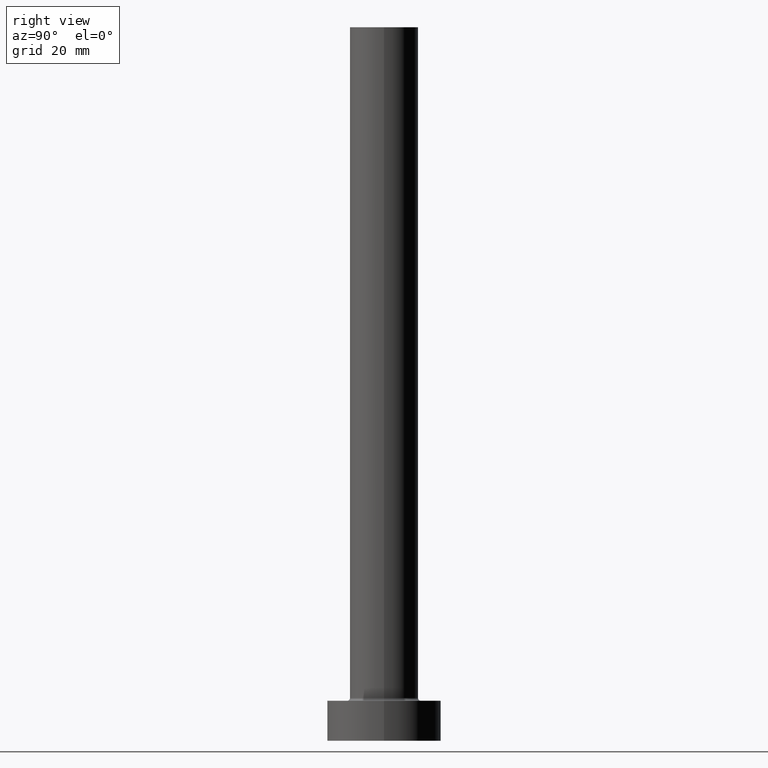
[diagram: clean part render]
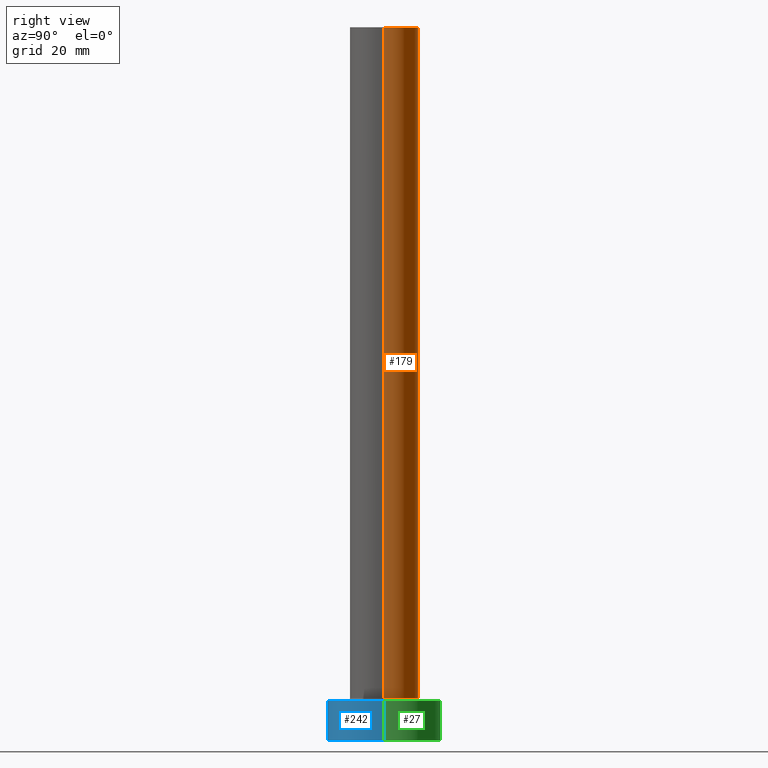
[diagram: same view with three faces highlighted in distinct colors, each labeled with its STEP entity id]
A machine part, right view with three faces highlighted in distinct colors.
Their STEP definitions:

[orange] entity #179 — the highlighted cylindrical surface (edge-blend (fillet) strip) has radius 6 mm, axis along (-0, -0, -1).
#12 = VECTOR ( 'NONE', #396, 1000.000000000000000 ) ;
#22 = ORIENTED_EDGE ( 'NONE', *, *, #330, .T. ) ;
#35 = VECTOR ( 'NONE', #274, 1000.000000000000000 ) ;
#54 = VERTEX_POINT ( 'NONE', #249 ) ;
#70 = EDGE_CURVE ( 'NONE', #160, #345, #219, .T. ) ;
#71 = DIRECTION ( 'NONE',  ( 1.000000000000000000, 0.000000000000000000, 0.000000000000000000 ) ) ;
#75 = EDGE_CURVE ( 'NONE', #152, #160, #253, .T. ) ;
#89 = CYLINDRICAL_SURFACE ( 'NONE', #418, 6.000000000000000888 ) ;
#93 = EDGE_CURVE ( 'NONE', #54, #345, #409, .T. ) ;
#129 = CARTESIAN_POINT ( 'NONE',  ( 6.000000000000000888, 7.347880794884120722E-16, 125.0000000000000000 ) ) ;
#130 = CARTESIAN_POINT ( 'NONE',  ( -6.000000000000000888, 0.000000000000000000, 125.0000000000000000 ) ) ;
#152 = VERTEX_POINT ( 'NONE', #395 ) ;
#156 = CARTESIAN_POINT ( 'NONE',  ( 0.000000000000000000, 0.000000000000000000, 7.500000000000007105 ) ) ;
#160 = VERTEX_POINT ( 'NONE', #130 ) ;
#165 = AXIS2_PLACEMENT_3D ( 'NONE', #362, #324, #71 ) ;
#166 = ORIENTED_EDGE ( 'NONE', *, *, #70, .F. ) ;
#168 = CARTESIAN_POINT ( 'NONE',  ( 0.000000000000000000, 0.000000000000000000, 125.0000000000000000 ) ) ;
#172 = FACE_OUTER_BOUND ( 'NONE', #201, .T. ) ;
#179 = ADVANCED_FACE ( 'NONE', ( #172 ), #89, .T. ) ;
#201 = EDGE_LOOP ( 'NONE', ( #298, #22, #353, #166 ) ) ;
#211 = DIRECTION ( 'NONE',  ( 1.000000000000000000, 0.000000000000000000, 0.000000000000000000 ) ) ;
#219 = LINE ( 'NONE', #250, #12 ) ;
#249 = CARTESIAN_POINT ( 'NONE',  ( 6.000000000000000888, 7.347880794884120722E-16, 7.500000000000007105 ) ) ;
#250 = CARTESIAN_POINT ( 'NONE',  ( -6.000000000000000888, 0.000000000000000000, 125.0000000000000000 ) ) ;
#253 = CIRCLE ( 'NONE', #165, 6.000000000000000888 ) ;
#274 = DIRECTION ( 'NONE',  ( -0.000000000000000000, -0.000000000000000000, -1.000000000000000000 ) ) ;
#298 = ORIENTED_EDGE ( 'NONE', *, *, #75, .F. ) ;
#324 = DIRECTION ( 'NONE',  ( 0.000000000000000000, 0.000000000000000000, 1.000000000000000000 ) ) ;
#330 = EDGE_CURVE ( 'NONE', #152, #54, #379, .T. ) ;
#340 = DIRECTION ( 'NONE',  ( -1.000000000000000000, 0.000000000000000000, 0.000000000000000000 ) ) ;
#345 = VERTEX_POINT ( 'NONE', #454 ) ;
#353 = ORIENTED_EDGE ( 'NONE', *, *, #93, .T. ) ;
#362 = CARTESIAN_POINT ( 'NONE',  ( 0.000000000000000000, 0.000000000000000000, 125.0000000000000000 ) ) ;
#379 = LINE ( 'NONE', #129, #35 ) ;
#382 = AXIS2_PLACEMENT_3D ( 'NONE', #156, #444, #211 ) ;
#395 = CARTESIAN_POINT ( 'NONE',  ( 6.000000000000000888, 7.347880794884120722E-16, 125.0000000000000000 ) ) ;
#396 = DIRECTION ( 'NONE',  ( -0.000000000000000000, -0.000000000000000000, -1.000000000000000000 ) ) ;
#409 = CIRCLE ( 'NONE', #382, 6.000000000000000888 ) ;
#418 = AXIS2_PLACEMENT_3D ( 'NONE', #168, #422, #340 ) ;
#422 = DIRECTION ( 'NONE',  ( -0.000000000000000000, -0.000000000000000000, -1.000000000000000000 ) ) ;
#444 = DIRECTION ( 'NONE',  ( 0.000000000000000000, 0.000000000000000000, 1.000000000000000000 ) ) ;
#454 = CARTESIAN_POINT ( 'NONE',  ( -6.000000000000000888, 0.000000000000000000, 7.500000000000007105 ) ) ;

[blue] entity #242 — the highlighted cylindrical surface (partial cylindrical patch) has radius 10 mm, axis along (-0, -0, -1).
#20 = EDGE_CURVE ( 'NONE', #106, #128, #195, .T. ) ;
#25 = ORIENTED_EDGE ( 'NONE', *, *, #202, .T. ) ;
#59 = DIRECTION ( 'NONE',  ( -0.000000000000000000, -0.000000000000000000, -1.000000000000000000 ) ) ;
#74 = VECTOR ( 'NONE', #178, 1000.000000000000000 ) ;
#91 = CARTESIAN_POINT ( 'NONE',  ( 10.00000000000000000, 1.224646799147353256E-15, 7.000000000000000000 ) ) ;
#106 = VERTEX_POINT ( 'NONE', #334 ) ;
#119 = EDGE_LOOP ( 'NONE', ( #425, #284, #25, #164 ) ) ;
#128 = VERTEX_POINT ( 'NONE', #344 ) ;
#164 = ORIENTED_EDGE ( 'NONE', *, *, #450, .T. ) ;
#171 = EDGE_CURVE ( 'NONE', #128, #357, #368, .T. ) ;
#178 = DIRECTION ( 'NONE',  ( -0.000000000000000000, -0.000000000000000000, -1.000000000000000000 ) ) ;
#195 = CIRCLE ( 'NONE', #317, 10.00000000000000000 ) ;
#202 = EDGE_CURVE ( 'NONE', #106, #243, #241, .T. ) ;
#213 = CARTESIAN_POINT ( 'NONE',  ( 0.000000000000000000, 0.000000000000000000, 7.000000000000000000 ) ) ;
#220 = DIRECTION ( 'NONE',  ( 0.000000000000000000, 0.000000000000000000, 1.000000000000000000 ) ) ;
#239 = FACE_OUTER_BOUND ( 'NONE', #119, .T. ) ;
#241 = LINE ( 'NONE', #387, #74 ) ;
#242 = ADVANCED_FACE ( 'NONE', ( #239 ), #449, .T. ) ;
#243 = VERTEX_POINT ( 'NONE', #270 ) ;
#244 = DIRECTION ( 'NONE',  ( -1.000000000000000000, 0.000000000000000000, 0.000000000000000000 ) ) ;
#256 = DIRECTION ( 'NONE',  ( 0.000000000000000000, 0.000000000000000000, 1.000000000000000000 ) ) ;
#264 = VECTOR ( 'NONE', #383, 1000.000000000000000 ) ;
#270 = CARTESIAN_POINT ( 'NONE',  ( -10.00000000000000000, 0.000000000000000000, 0.000000000000000000 ) ) ;
#278 = CARTESIAN_POINT ( 'NONE',  ( 10.00000000000000000, 1.224646799147353256E-15, 0.000000000000000000 ) ) ;
#284 = ORIENTED_EDGE ( 'NONE', *, *, #20, .F. ) ;
#317 = AXIS2_PLACEMENT_3D ( 'NONE', #213, #220, #428 ) ;
#334 = CARTESIAN_POINT ( 'NONE',  ( -10.00000000000000000, 0.000000000000000000, 7.000000000000000000 ) ) ;
#344 = CARTESIAN_POINT ( 'NONE',  ( 10.00000000000000000, 1.224646799147353256E-15, 7.000000000000000000 ) ) ;
#349 = CARTESIAN_POINT ( 'NONE',  ( 0.000000000000000000, 0.000000000000000000, 7.000000000000000000 ) ) ;
#354 = CIRCLE ( 'NONE', #390, 10.00000000000000000 ) ;
#356 = CARTESIAN_POINT ( 'NONE',  ( 0.000000000000000000, 0.000000000000000000, 0.000000000000000000 ) ) ;
#357 = VERTEX_POINT ( 'NONE', #278 ) ;
#368 = LINE ( 'NONE', #91, #264 ) ;
#383 = DIRECTION ( 'NONE',  ( -0.000000000000000000, -0.000000000000000000, -1.000000000000000000 ) ) ;
#387 = CARTESIAN_POINT ( 'NONE',  ( -10.00000000000000000, 0.000000000000000000, 7.000000000000000000 ) ) ;
#390 = AXIS2_PLACEMENT_3D ( 'NONE', #356, #256, #402 ) ;
#402 = DIRECTION ( 'NONE',  ( 1.000000000000000000, 0.000000000000000000, 0.000000000000000000 ) ) ;
#425 = ORIENTED_EDGE ( 'NONE', *, *, #171, .F. ) ;
#427 = AXIS2_PLACEMENT_3D ( 'NONE', #349, #59, #244 ) ;
#428 = DIRECTION ( 'NONE',  ( 1.000000000000000000, 0.000000000000000000, 0.000000000000000000 ) ) ;
#449 = CYLINDRICAL_SURFACE ( 'NONE', #427, 10.00000000000000000 ) ;
#450 = EDGE_CURVE ( 'NONE', #243, #357, #354, .T. ) ;

[green] entity #27 — the highlighted cylindrical surface (partial cylindrical patch) has radius 10 mm, axis along (-0, -0, -1).
#17 = ORIENTED_EDGE ( 'NONE', *, *, #385, .T. ) ;
#26 = AXIS2_PLACEMENT_3D ( 'NONE', #114, #295, #374 ) ;
#27 = ADVANCED_FACE ( 'NONE', ( #161 ), #232, .T. ) ;
#33 = DIRECTION ( 'NONE',  ( 1.000000000000000000, 0.000000000000000000, 0.000000000000000000 ) ) ;
#39 = DIRECTION ( 'NONE',  ( 1.000000000000000000, 0.000000000000000000, 0.000000000000000000 ) ) ;
#64 = CARTESIAN_POINT ( 'NONE',  ( 0.000000000000000000, 0.000000000000000000, 7.000000000000000000 ) ) ;
#74 = VECTOR ( 'NONE', #178, 1000.000000000000000 ) ;
#79 = ORIENTED_EDGE ( 'NONE', *, *, #163, .F. ) ;
#91 = CARTESIAN_POINT ( 'NONE',  ( 10.00000000000000000, 1.224646799147353256E-15, 7.000000000000000000 ) ) ;
#106 = VERTEX_POINT ( 'NONE', #334 ) ;
#114 = CARTESIAN_POINT ( 'NONE',  ( 0.000000000000000000, 0.000000000000000000, 7.000000000000000000 ) ) ;
#128 = VERTEX_POINT ( 'NONE', #344 ) ;
#131 = CIRCLE ( 'NONE', #401, 10.00000000000000000 ) ;
#161 = FACE_OUTER_BOUND ( 'NONE', #388, .T. ) ;
#163 = EDGE_CURVE ( 'NONE', #128, #106, #131, .T. ) ;
#171 = EDGE_CURVE ( 'NONE', #128, #357, #368, .T. ) ;
#173 = DIRECTION ( 'NONE',  ( 0.000000000000000000, 0.000000000000000000, 1.000000000000000000 ) ) ;
#178 = DIRECTION ( 'NONE',  ( -0.000000000000000000, -0.000000000000000000, -1.000000000000000000 ) ) ;
#202 = EDGE_CURVE ( 'NONE', #106, #243, #241, .T. ) ;
#231 = ORIENTED_EDGE ( 'NONE', *, *, #171, .T. ) ;
#232 = CYLINDRICAL_SURFACE ( 'NONE', #26, 10.00000000000000000 ) ;
#238 = CIRCLE ( 'NONE', #435, 10.00000000000000000 ) ;
#241 = LINE ( 'NONE', #387, #74 ) ;
#243 = VERTEX_POINT ( 'NONE', #270 ) ;
#258 = DIRECTION ( 'NONE',  ( 0.000000000000000000, 0.000000000000000000, 1.000000000000000000 ) ) ;
#264 = VECTOR ( 'NONE', #383, 1000.000000000000000 ) ;
#270 = CARTESIAN_POINT ( 'NONE',  ( -10.00000000000000000, 0.000000000000000000, 0.000000000000000000 ) ) ;
#278 = CARTESIAN_POINT ( 'NONE',  ( 10.00000000000000000, 1.224646799147353256E-15, 0.000000000000000000 ) ) ;
#295 = DIRECTION ( 'NONE',  ( -0.000000000000000000, -0.000000000000000000, -1.000000000000000000 ) ) ;
#321 = CARTESIAN_POINT ( 'NONE',  ( 0.000000000000000000, 0.000000000000000000, 0.000000000000000000 ) ) ;
#334 = CARTESIAN_POINT ( 'NONE',  ( -10.00000000000000000, 0.000000000000000000, 7.000000000000000000 ) ) ;
#344 = CARTESIAN_POINT ( 'NONE',  ( 10.00000000000000000, 1.224646799147353256E-15, 7.000000000000000000 ) ) ;
#357 = VERTEX_POINT ( 'NONE', #278 ) ;
#368 = LINE ( 'NONE', #91, #264 ) ;
#374 = DIRECTION ( 'NONE',  ( -1.000000000000000000, 0.000000000000000000, 0.000000000000000000 ) ) ;
#383 = DIRECTION ( 'NONE',  ( -0.000000000000000000, -0.000000000000000000, -1.000000000000000000 ) ) ;
#385 = EDGE_CURVE ( 'NONE', #357, #243, #238, .T. ) ;
#387 = CARTESIAN_POINT ( 'NONE',  ( -10.00000000000000000, 0.000000000000000000, 7.000000000000000000 ) ) ;
#388 = EDGE_LOOP ( 'NONE', ( #79, #231, #17, #430 ) ) ;
#401 = AXIS2_PLACEMENT_3D ( 'NONE', #64, #173, #39 ) ;
#430 = ORIENTED_EDGE ( 'NONE', *, *, #202, .F. ) ;
#435 = AXIS2_PLACEMENT_3D ( 'NONE', #321, #258, #33 ) ;